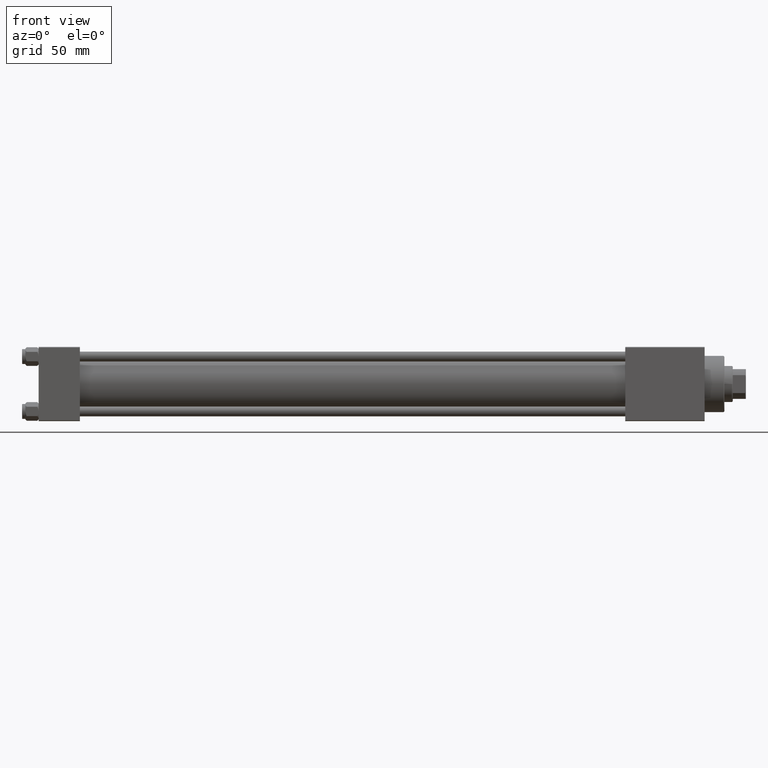
[diagram: clean part render]
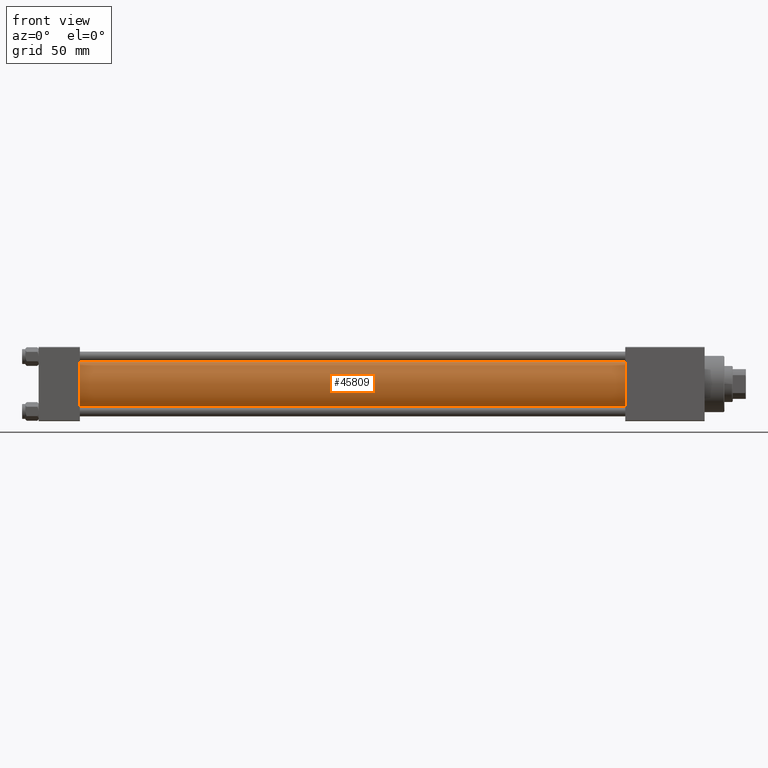
[diagram: same view with one face highlighted and labeled with its STEP entity id]
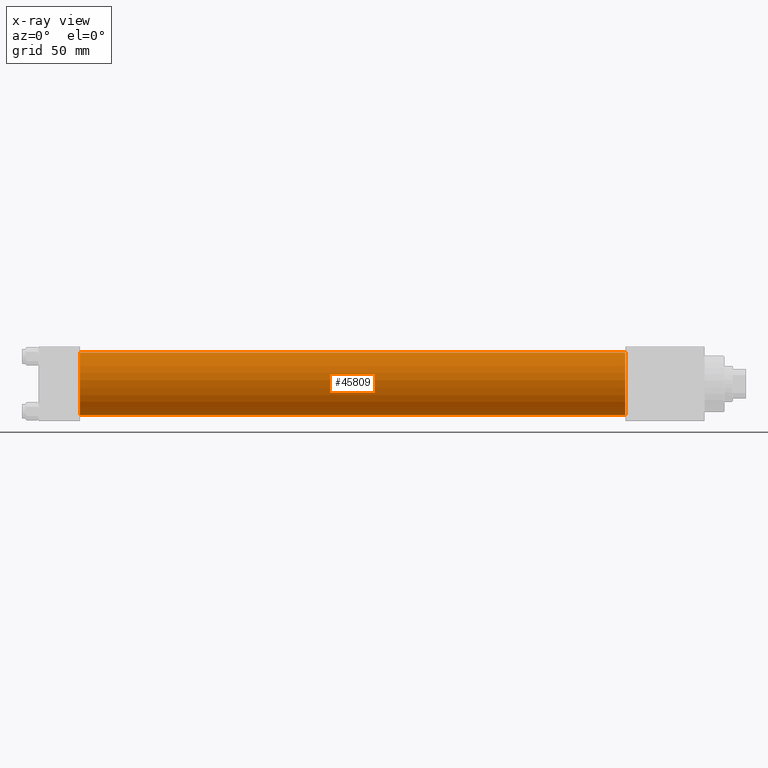
[diagram: x-ray of the same camera — body ghosted, the highlighted face saturated]
A machine part, front view. The second image highlights one B-rep face of the part: STEP entity #45809.
The next image is the same camera in x-ray: the body ghosted, the highlighted face saturated — about 0% of this face is hidden behind the body in this view.
In plain terms, the highlighted cylindrical surface (edge-blend (fillet) strip) has radius 19 mm, axis along (-1, -0, -0).
Its self-contained STEP definition (entity closure, byte-faithful):
#827 = VERTEX_POINT ( 'NONE', #2050 ) ;
#2050 = CARTESIAN_POINT ( 'NONE',  ( 355.0000000000000568, -2.602085213965210642E-15, 19.00000000000000000 ) ) ;
#5650 = DIRECTION ( 'NONE',  ( 1.000000000000000000, -0.000000000000000000, 0.000000000000000000 ) ) ;
#5916 = DIRECTION ( 'NONE',  ( -1.000000000000000000, -0.000000000000000000, -0.000000000000000000 ) ) ;
#6543 = VERTEX_POINT ( 'NONE', #34649 ) ;
#6592 = LINE ( 'NONE', #26874, #28557 ) ;
#9966 = CARTESIAN_POINT ( 'NONE',  ( 355.0000000000000568, -2.602085213965210642E-15, 19.00000000000000000 ) ) ;
#10595 = CIRCLE ( 'NONE', #15454, 19.00000000000000000 ) ;
#12231 = CARTESIAN_POINT ( 'NONE',  ( 355.0000000000000568, -2.752562955852396712E-16, -19.00000000000000000 ) ) ;
#13256 = CARTESIAN_POINT ( 'NONE',  ( 25.00000000000002132, -2.602085213965210642E-15, 0.000000000000000000 ) ) ;
#13408 = AXIS2_PLACEMENT_3D ( 'NONE', #21256, #32406, #44580 ) ;
#13533 = ORIENTED_EDGE ( 'NONE', *, *, #25630, .F. ) ;
#13634 = ORIENTED_EDGE ( 'NONE', *, *, #43247, .F. ) ;
#14225 = EDGE_CURVE ( 'NONE', #6543, #17784, #10595, .T. ) ;
#15454 = AXIS2_PLACEMENT_3D ( 'NONE', #13256, #5650, #40636 ) ;
#17128 = EDGE_CURVE ( 'NONE', #827, #6543, #36853, .T. ) ;
#17680 = FACE_OUTER_BOUND ( 'NONE', #23149, .T. ) ;
#17784 = VERTEX_POINT ( 'NONE', #41618 ) ;
#21256 = CARTESIAN_POINT ( 'NONE',  ( 355.0000000000000568, -2.602085213965210642E-15, 0.000000000000000000 ) ) ;
#21983 = DIRECTION ( 'NONE',  ( 0.000000000000000000, 0.000000000000000000, 1.000000000000000000 ) ) ;
#23085 = AXIS2_PLACEMENT_3D ( 'NONE', #41491, #29327, #21983 ) ;
#23149 = EDGE_LOOP ( 'NONE', ( #13634, #13533, #38374, #49239 ) ) ;
#25630 = EDGE_CURVE ( 'NONE', #827, #32233, #35280, .T. ) ;
#26874 = CARTESIAN_POINT ( 'NONE',  ( 355.0000000000000568, -2.752562955852396712E-16, -19.00000000000000000 ) ) ;
#28557 = VECTOR ( 'NONE', #33981, 1000.000000000000000 ) ;
#29327 = DIRECTION ( 'NONE',  ( -1.000000000000000000, -0.000000000000000000, -0.000000000000000000 ) ) ;
#32233 = VERTEX_POINT ( 'NONE', #12231 ) ;
#32406 = DIRECTION ( 'NONE',  ( 1.000000000000000000, 0.000000000000000000, 0.000000000000000000 ) ) ;
#32871 = CYLINDRICAL_SURFACE ( 'NONE', #23085, 19.00000000000000000 ) ;
#33981 = DIRECTION ( 'NONE',  ( -1.000000000000000000, -0.000000000000000000, -0.000000000000000000 ) ) ;
#34649 = CARTESIAN_POINT ( 'NONE',  ( 25.00000000000002132, -2.602085213965210642E-15, 19.00000000000000000 ) ) ;
#35138 = VECTOR ( 'NONE', #5916, 1000.000000000000000 ) ;
#35280 = CIRCLE ( 'NONE', #13408, 19.00000000000000000 ) ;
#36853 = LINE ( 'NONE', #9966, #35138 ) ;
#38374 = ORIENTED_EDGE ( 'NONE', *, *, #17128, .T. ) ;
#40636 = DIRECTION ( 'NONE',  ( 0.000000000000000000, 0.000000000000000000, 1.000000000000000000 ) ) ;
#41491 = CARTESIAN_POINT ( 'NONE',  ( 355.0000000000000568, -2.602085213965210642E-15, 0.000000000000000000 ) ) ;
#41618 = CARTESIAN_POINT ( 'NONE',  ( 25.00000000000002132, -2.752562955852396712E-16, -19.00000000000000000 ) ) ;
#43247 = EDGE_CURVE ( 'NONE', #32233, #17784, #6592, .T. ) ;
#44580 = DIRECTION ( 'NONE',  ( 0.000000000000000000, 0.000000000000000000, -1.000000000000000000 ) ) ;
#45809 = ADVANCED_FACE ( 'NONE', ( #17680 ), #32871, .T. ) ;
#49239 = ORIENTED_EDGE ( 'NONE', *, *, #14225, .T. ) ;